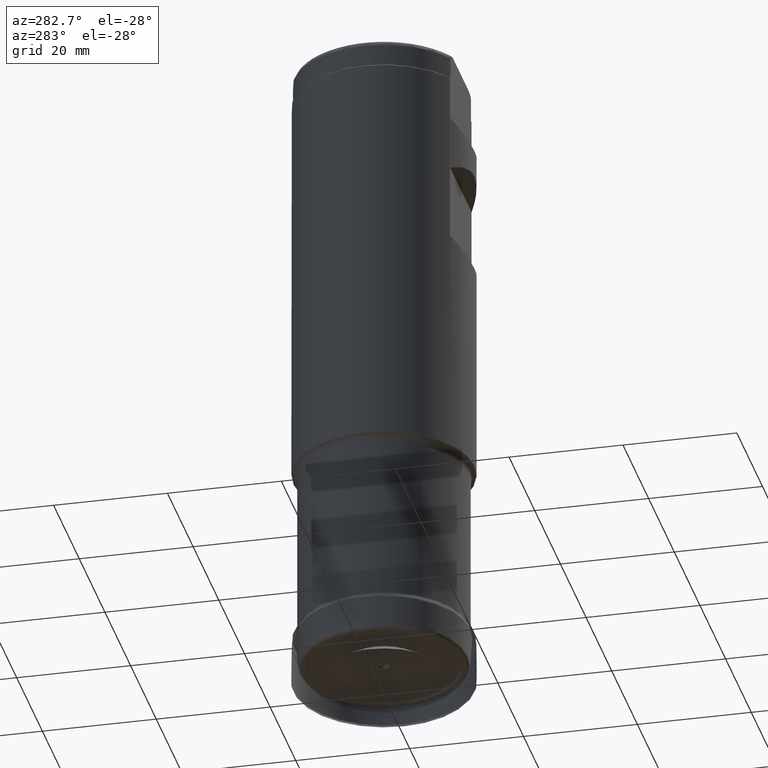
[diagram: clean part render]
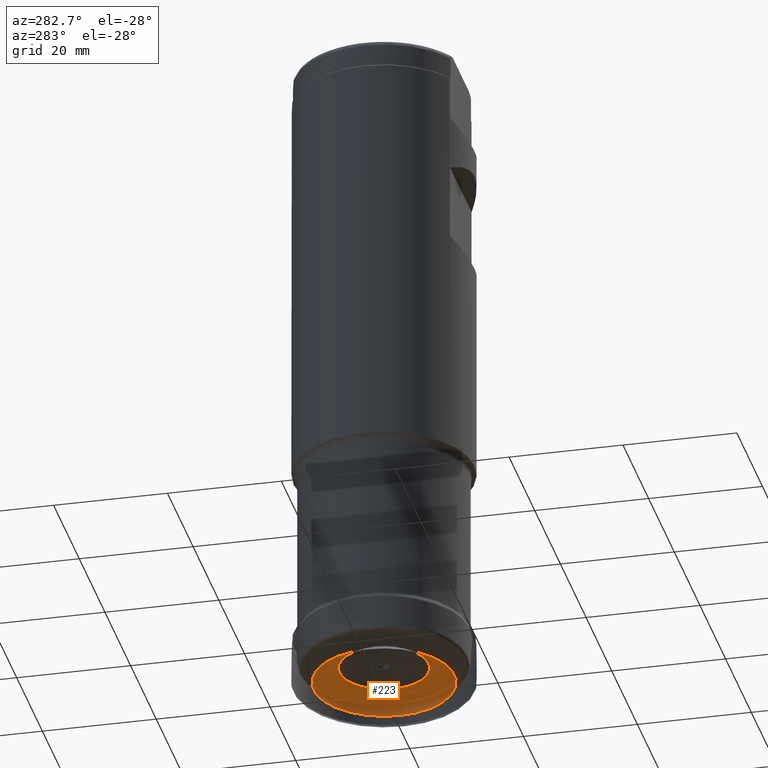
[diagram: same view with one face highlighted and labeled with its STEP entity id]
A machine part, auxiliary view. The second image highlights one B-rep face of the part: STEP entity #223.
In plain terms, the highlighted face is a SurfaceOfRevolution surface.
Its self-contained STEP definition (entity closure, byte-faithful):
#109=SURFACE_OF_REVOLUTION('',#822,#132);
#132=AXIS1_PLACEMENT('',#1576,#1054);
#223=ADVANCED_FACE('',(#340,#341),#109,.F.);
#276=CIRCLE('',#900,7.83999178765378);
#277=CIRCLE('',#901,12.3826958609165);
#340=FACE_BOUND('',#436,.T.);
#341=FACE_BOUND('',#437,.T.);
#436=EDGE_LOOP('',(#607));
#437=EDGE_LOOP('',(#608));
#607=ORIENTED_EDGE('',*,*,#764,.T.);
#608=ORIENTED_EDGE('',*,*,#765,.F.);
#693=VERTEX_POINT('',#1560);
#694=VERTEX_POINT('',#1569);
#764=EDGE_CURVE('',#693,#693,#276,.T.);
#765=EDGE_CURVE('',#694,#694,#277,.T.);
#822=B_SPLINE_CURVE_WITH_KNOTS('',5,(#1570,#1571,#1572,#1573,#1574,#1575),
 .UNSPECIFIED.,.F.,.F.,(6,6),(0.,1.),.UNSPECIFIED.);
#900=AXIS2_PLACEMENT_3D('',#1559,#1049,#1050);
#901=AXIS2_PLACEMENT_3D('',#1568,#1052,#1053);
#1049=DIRECTION('',(0.,0.,-1.));
#1050=DIRECTION('',(-1.,0.,0.));
#1052=DIRECTION('',(0.,0.,-1.));
#1053=DIRECTION('',(-1.,0.,0.));
#1054=DIRECTION('',(0.,0.,-1.));
#1559=CARTESIAN_POINT('',(0.,0.,0.72569941749438));
#1560=CARTESIAN_POINT('',(-7.83999178765378,0.,0.72569941749438));
#1568=CARTESIAN_POINT('',(0.,0.,-2.08285636541029));
#1569=CARTESIAN_POINT('',(-12.3826958609165,0.,-2.08285636541029));
#1570=CARTESIAN_POINT('',(12.3826958649381,0.,-2.08285635845847));
#1571=CARTESIAN_POINT('',(11.4579477239964,-9.9783444488494E-31,-1.54789007222859));
#1572=CARTESIAN_POINT('',(10.5406746611932,-1.78791603667556E-30,-0.99998013769049));
#1573=CARTESIAN_POINT('',(9.63142115390487,-8.42946953915398E-30,-0.438880788167338));
#1574=CARTESIAN_POINT('',(8.73057258570224,-3.76712636865361E-30,0.135672524496784));
#1575=CARTESIAN_POINT('',(7.83999178765378,0.,0.72569941749438));
#1576=CARTESIAN_POINT('',(0.,0.,0.));